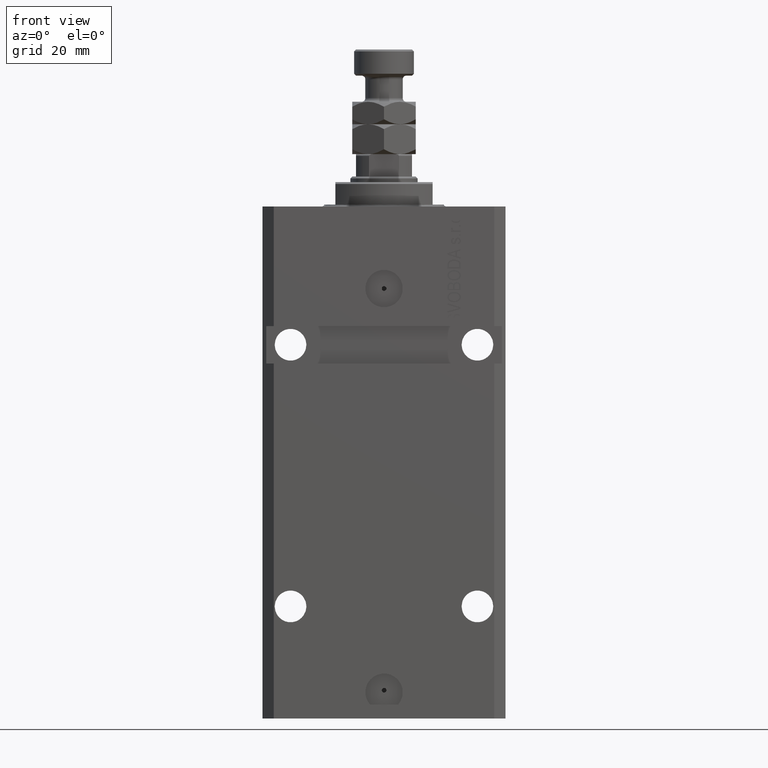
[diagram: clean part render]
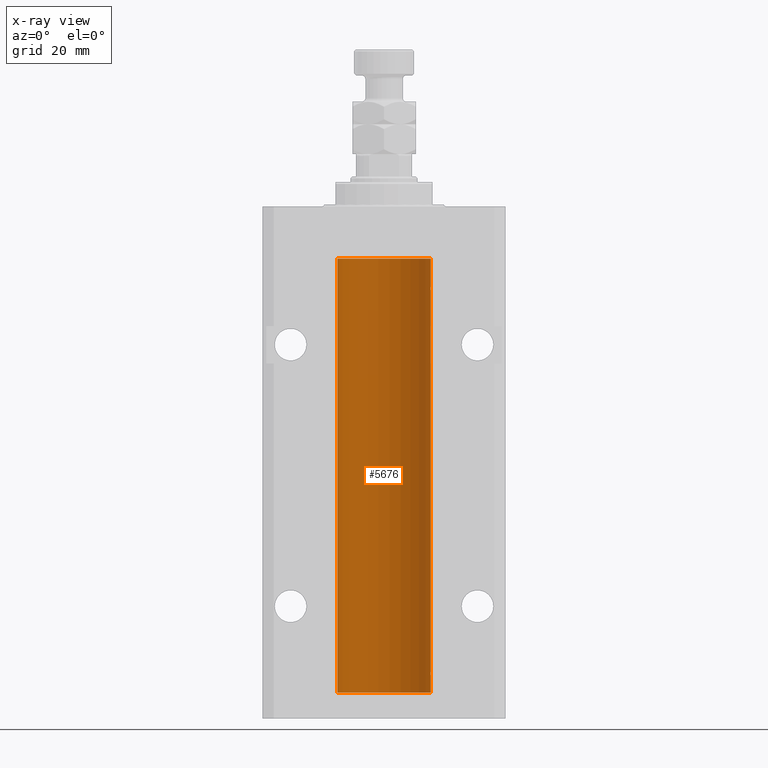
[diagram: x-ray — body ghosted, one internal face saturated and labeled with its STEP entity id]
A machine part, front view, then the same camera in x-ray: the body is ghosted and one INTERNAL B-rep face — a face not visible from any outside direction — is saturated and labeled: STEP entity #5676.
In plain terms, the highlighted cylindrical surface (partial cylindrical patch) has radius 12.5 mm, axis along (0, 0, 1).
Its self-contained STEP definition (entity closure, byte-faithful):
#89 = CARTESIAN_POINT ( 'NONE',  ( 12.50000000000000000, 5.055633433180616021E-15, -125.6250000000000142 ) ) ;
#118 = AXIS2_PLACEMENT_3D ( 'NONE', #38861, #46166, #39095 ) ;
#917 = CARTESIAN_POINT ( 'NONE',  ( 12.49421963472024366, 0.3844519291903583103, -22.49947303647044805 ) ) ;
#1176 = CARTESIAN_POINT ( 'NONE',  ( 12.49625698805480845, 0.3151108292486959339, -125.5459369568817038 ) ) ;
#1428 = CARTESIAN_POINT ( 'NONE',  ( 12.50000000000000000, -1.470318446642941360E-15, -22.62500000000000000 ) ) ;
#1517 = VERTEX_POINT ( 'NONE', #89 ) ;
#1903 = ORIENTED_EDGE ( 'NONE', *, *, #23784, .T. ) ;
#2002 = CARTESIAN_POINT ( 'NONE',  ( 12.48520578595314845, 0.6087855079133684955, -21.83656717509346024 ) ) ;
#2223 = B_SPLINE_CURVE_WITH_KNOTS ( 'NONE', 3,
 ( #13607, #34600, #5820, #45450, #45212, #27310, #20920, #38369 ),
 .UNSPECIFIED., .F., .F.,
 ( 4, 2, 2, 4 ),
 ( 0.0009773924225142717210, 0.001221629287363824694, 0.001465866152213377450, 0.001954339881912483395 ),
 .UNSPECIFIED. ) ;
#2282 = LINE ( 'NONE', #25790, #13153 ) ;
#2362 = EDGE_CURVE ( 'NONE', #16736, #43991, #14389, .T. ) ;
#3898 = ORIENTED_EDGE ( 'NONE', *, *, #16720, .T. ) ;
#4448 = CARTESIAN_POINT ( 'NONE',  ( 12.49999999999999822, 0.08262306818362555316, -22.62499999999997513 ) ) ;
#5055 = LINE ( 'NONE', #8116, #10834 ) ;
#5676 = ADVANCED_FACE ( 'NONE', ( #9326 ), #23708, .F. ) ;
#5820 = CARTESIAN_POINT ( 'NONE',  ( 12.48520578595315023, 0.6087855079133756009, -124.8365671750934780 ) ) ;
#5856 = CARTESIAN_POINT ( 'NONE',  ( 12.48436522214846889, 0.6250000000078781426, -21.99999999999923261 ) ) ;
#6756 = ORIENTED_EDGE ( 'NONE', *, *, #24801, .F. ) ;
#8116 = CARTESIAN_POINT ( 'NONE',  ( 12.50000000000000000, 0.000000000000000000, -130.0999999999999943 ) ) ;
#8217 = CARTESIAN_POINT ( 'NONE',  ( 12.48436522214885969, 0.6250000000001448841, -22.16312747540307271 ) ) ;
#8277 = VERTEX_POINT ( 'NONE', #44786 ) ;
#8980 = B_SPLINE_CURVE_WITH_KNOTS ( 'NONE', 3,
 ( #37029, #19126, #33502, #1176, #29969, #44333, #12037, #40792 ),
 .UNSPECIFIED., .F., .F.,
 ( 4, 2, 2, 4 ),
 ( 4.913018323501965315E-18, 0.0002443481056285863075, 0.0004886962112571676276, 0.0009773924225142717210 ),
 .UNSPECIFIED. ) ;
#9190 = VERTEX_POINT ( 'NONE', #1428 ) ;
#9326 = FACE_OUTER_BOUND ( 'NONE', #16656, .T. ) ;
#10834 = VECTOR ( 'NONE', #33377, 1000.000000000000000 ) ;
#12037 = CARTESIAN_POINT ( 'NONE',  ( 12.48436522214885613, 0.6250000000001550982, -125.1631274754030585 ) ) ;
#12229 = ORIENTED_EDGE ( 'NONE', *, *, #46098, .T. ) ;
#13133 = DIRECTION ( 'NONE',  ( 1.000000000000000000, 0.000000000000000000, 0.000000000000000000 ) ) ;
#13153 = VECTOR ( 'NONE', #37096, 1000.000000000000000 ) ;
#13215 = DIRECTION ( 'NONE',  ( -0.000000000000000000, -0.000000000000000000, 1.000000000000000000 ) ) ;
#13371 = CARTESIAN_POINT ( 'NONE',  ( -12.50000000000000000, 1.530808498934191521E-15, -130.0999999999999943 ) ) ;
#13607 = CARTESIAN_POINT ( 'NONE',  ( 12.48436522214846711, 0.6250000000078859141, -124.9999999999992326 ) ) ;
#14389 = B_SPLINE_CURVE_WITH_KNOTS ( 'NONE', 3,
 ( #23004, #17116, #2002, #41397, #35031, #26806, #44938, #31499 ),
 .UNSPECIFIED., .F., .F.,
 ( 4, 2, 2, 4 ),
 ( 0.0009773924225142506875, 0.001221629287363794770, 0.001465866152213338852, 0.001954339881912434389 ),
 .UNSPECIFIED. ) ;
#15314 = CARTESIAN_POINT ( 'NONE',  ( 12.48809900631782099, 0.5573988467445639694, -22.32640147935474317 ) ) ;
#16514 = LINE ( 'NONE', #23322, #18617 ) ;
#16656 = EDGE_LOOP ( 'NONE', ( #6756, #39651, #24393, #3898, #46558, #19027, #46536, #18421, #1903, #12229 ) ) ;
#16720 = EDGE_CURVE ( 'NONE', #1517, #37950, #8980, .T. ) ;
#16736 = VERTEX_POINT ( 'NONE', #19580 ) ;
#17116 = CARTESIAN_POINT ( 'NONE',  ( 12.48436522214888100, 0.6249999999996762590, -21.91847339462350774 ) ) ;
#18401 = AXIS2_PLACEMENT_3D ( 'NONE', #25707, #33015, #25252 ) ;
#18421 = ORIENTED_EDGE ( 'NONE', *, *, #2362, .T. ) ;
#18617 = VECTOR ( 'NONE', #13215, 1000.000000000000000 ) ;
#18866 = CARTESIAN_POINT ( 'NONE',  ( 12.49915742890631876, 0.1636982395582437522, -22.60872397847025539 ) ) ;
#19027 = ORIENTED_EDGE ( 'NONE', *, *, #33480, .T. ) ;
#19126 = CARTESIAN_POINT ( 'NONE',  ( 12.50000000000000000, 0.08262306818362785688, -125.6249999999999858 ) ) ;
#19580 = CARTESIAN_POINT ( 'NONE',  ( 12.48436522214846889, 0.6250000000078781426, -21.99999999999923261 ) ) ;
#20920 = CARTESIAN_POINT ( 'NONE',  ( 12.49999999999999467, 0.1631389616600898151, -124.3750000000002274 ) ) ;
#20932 = EDGE_CURVE ( 'NONE', #22522, #21450, #38710, .T. ) ;
#21450 = VERTEX_POINT ( 'NONE', #13371 ) ;
#22522 = VERTEX_POINT ( 'NONE', #24150 ) ;
#23004 = CARTESIAN_POINT ( 'NONE',  ( 12.48436522214846889, 0.6250000000078781426, -21.99999999999923261 ) ) ;
#23322 = CARTESIAN_POINT ( 'NONE',  ( 12.50000000000000000, 0.000000000000000000, -130.0999999999999943 ) ) ;
#23441 = AXIS2_PLACEMENT_3D ( 'NONE', #35045, #31050, #13133 ) ;
#23708 = CYLINDRICAL_SURFACE ( 'NONE', #23441, 12.50000000000000000 ) ;
#23784 = EDGE_CURVE ( 'NONE', #43991, #33927, #5055, .T. ) ;
#24150 = CARTESIAN_POINT ( 'NONE',  ( 12.50000000000000000, 0.000000000000000000, -130.0999999999999943 ) ) ;
#24157 = CARTESIAN_POINT ( 'NONE',  ( 12.48436522214846711, 0.6250000000078859141, -124.9999999999992326 ) ) ;
#24393 = ORIENTED_EDGE ( 'NONE', *, *, #35600, .T. ) ;
#24713 = VECTOR ( 'NONE', #29912, 1000.000000000000000 ) ;
#24801 = EDGE_CURVE ( 'NONE', #21450, #8277, #2282, .T. ) ;
#25252 = DIRECTION ( 'NONE',  ( 1.000000000000000000, 0.000000000000000000, 0.000000000000000000 ) ) ;
#25707 = CARTESIAN_POINT ( 'NONE',  ( 0.000000000000000000, 0.000000000000000000, -130.0999999999999943 ) ) ;
#25790 = CARTESIAN_POINT ( 'NONE',  ( -12.50000000000000000, 1.530808498934191521E-15, -130.0999999999999943 ) ) ;
#26806 = CARTESIAN_POINT ( 'NONE',  ( 12.49631206032075958, 0.3252904079142808214, -21.44139700214925526 ) ) ;
#27078 = CARTESIAN_POINT ( 'NONE',  ( 12.50000000000000000, 0.000000000000000000, -130.0999999999999943 ) ) ;
#27310 = CARTESIAN_POINT ( 'NONE',  ( 12.49631206032075781, 0.3252904079142953098, -124.4413970021492872 ) ) ;
#29912 = DIRECTION ( 'NONE',  ( -0.000000000000000000, -0.000000000000000000, 1.000000000000000000 ) ) ;
#29969 = CARTESIAN_POINT ( 'NONE',  ( 12.49421963472024544, 0.3844519291903631952, -125.4994730364704907 ) ) ;
#31050 = DIRECTION ( 'NONE',  ( -0.000000000000000000, -0.000000000000000000, 1.000000000000000000 ) ) ;
#31499 = CARTESIAN_POINT ( 'NONE',  ( 12.50000000000017941, 3.868073565084946818E-13, -21.37499999999641176 ) ) ;
#31589 = B_SPLINE_CURVE_WITH_KNOTS ( 'NONE', 3,
 ( #36775, #4448, #18866, #33240, #917, #15314, #8217, #5856 ),
 .UNSPECIFIED., .F., .F.,
 ( 4, 2, 2, 4 ),
 ( 2.576359803311334014E-18, 0.0002443481056285645150, 0.0004886962112571264279, 0.0009773924225142506875 ),
 .UNSPECIFIED. ) ;
#33015 = DIRECTION ( 'NONE',  ( 0.000000000000000000, 0.000000000000000000, 1.000000000000000000 ) ) ;
#33240 = CARTESIAN_POINT ( 'NONE',  ( 12.49625698805480667, 0.3151108292486967666, -22.54593695688170385 ) ) ;
#33377 = DIRECTION ( 'NONE',  ( -0.000000000000000000, -0.000000000000000000, 1.000000000000000000 ) ) ;
#33480 = EDGE_CURVE ( 'NONE', #40434, #9190, #44514, .T. ) ;
#33502 = CARTESIAN_POINT ( 'NONE',  ( 12.49915742890631876, 0.1636982395582410321, -125.6087239784702518 ) ) ;
#33927 = VERTEX_POINT ( 'NONE', #39411 ) ;
#34600 = CARTESIAN_POINT ( 'NONE',  ( 12.48436522214887745, 0.6249999999996828093, -124.9184733946234758 ) ) ;
#35031 = CARTESIAN_POINT ( 'NONE',  ( 12.49012055744648997, 0.5002956126655976332, -21.61641710202404454 ) ) ;
#35045 = CARTESIAN_POINT ( 'NONE',  ( 0.000000000000000000, 0.000000000000000000, -130.0999999999999943 ) ) ;
#35600 = EDGE_CURVE ( 'NONE', #22522, #1517, #16514, .T. ) ;
#36775 = CARTESIAN_POINT ( 'NONE',  ( 12.50000000000000000, -1.470318446642941360E-15, -22.62500000000000000 ) ) ;
#37029 = CARTESIAN_POINT ( 'NONE',  ( 12.50000000000000000, 5.055633433180616021E-15, -125.6250000000000142 ) ) ;
#37096 = DIRECTION ( 'NONE',  ( -0.000000000000000000, -0.000000000000000000, 1.000000000000000000 ) ) ;
#37786 = EDGE_CURVE ( 'NONE', #37950, #40434, #2223, .T. ) ;
#37950 = VERTEX_POINT ( 'NONE', #24157 ) ;
#38192 = CARTESIAN_POINT ( 'NONE',  ( 12.50000000000017941, 3.868073565084946818E-13, -21.37499999999641176 ) ) ;
#38369 = CARTESIAN_POINT ( 'NONE',  ( 12.50000000000017941, 3.868073647803008074E-13, -124.3749999999964047 ) ) ;
#38710 = CIRCLE ( 'NONE', #18401, 12.50000000000000000 ) ;
#38861 = CARTESIAN_POINT ( 'NONE',  ( 0.000000000000000000, 0.000000000000000000, -13.99999999999999822 ) ) ;
#39095 = DIRECTION ( 'NONE',  ( 1.000000000000000000, 0.000000000000000000, 0.000000000000000000 ) ) ;
#39411 = CARTESIAN_POINT ( 'NONE',  ( 12.50000000000000000, 0.000000000000000000, -13.99999999999999822 ) ) ;
#39651 = ORIENTED_EDGE ( 'NONE', *, *, #20932, .F. ) ;
#40434 = VERTEX_POINT ( 'NONE', #42119 ) ;
#40792 = CARTESIAN_POINT ( 'NONE',  ( 12.48436522214846711, 0.6250000000078859141, -124.9999999999992326 ) ) ;
#41397 = CARTESIAN_POINT ( 'NONE',  ( 12.48810305280568222, 0.5461368461738448365, -21.68525466142676805 ) ) ;
#42119 = CARTESIAN_POINT ( 'NONE',  ( 12.50000000000017941, 3.868073647803008074E-13, -124.3749999999964047 ) ) ;
#42300 = CIRCLE ( 'NONE', #118, 12.50000000000000000 ) ;
#43991 = VERTEX_POINT ( 'NONE', #38192 ) ;
#44333 = CARTESIAN_POINT ( 'NONE',  ( 12.48809900631782099, 0.5573988467445673001, -125.3264014793547290 ) ) ;
#44514 = LINE ( 'NONE', #27078, #24713 ) ;
#44786 = CARTESIAN_POINT ( 'NONE',  ( -12.50000000000000000, 1.530808498934191521E-15, -13.99999999999999822 ) ) ;
#44938 = CARTESIAN_POINT ( 'NONE',  ( 12.49999999999999112, 0.1631389616600879555, -21.37500000000019185 ) ) ;
#45212 = CARTESIAN_POINT ( 'NONE',  ( 12.49012055744648642, 0.5002956126656095126, -124.6164171020240445 ) ) ;
#45450 = CARTESIAN_POINT ( 'NONE',  ( 12.48810305280568222, 0.5461368461738498326, -124.6852546614267538 ) ) ;
#45942 = EDGE_CURVE ( 'NONE', #9190, #16736, #31589, .T. ) ;
#46098 = EDGE_CURVE ( 'NONE', #33927, #8277, #42300, .T. ) ;
#46166 = DIRECTION ( 'NONE',  ( 0.000000000000000000, 0.000000000000000000, 1.000000000000000000 ) ) ;
#46536 = ORIENTED_EDGE ( 'NONE', *, *, #45942, .T. ) ;
#46558 = ORIENTED_EDGE ( 'NONE', *, *, #37786, .T. ) ;